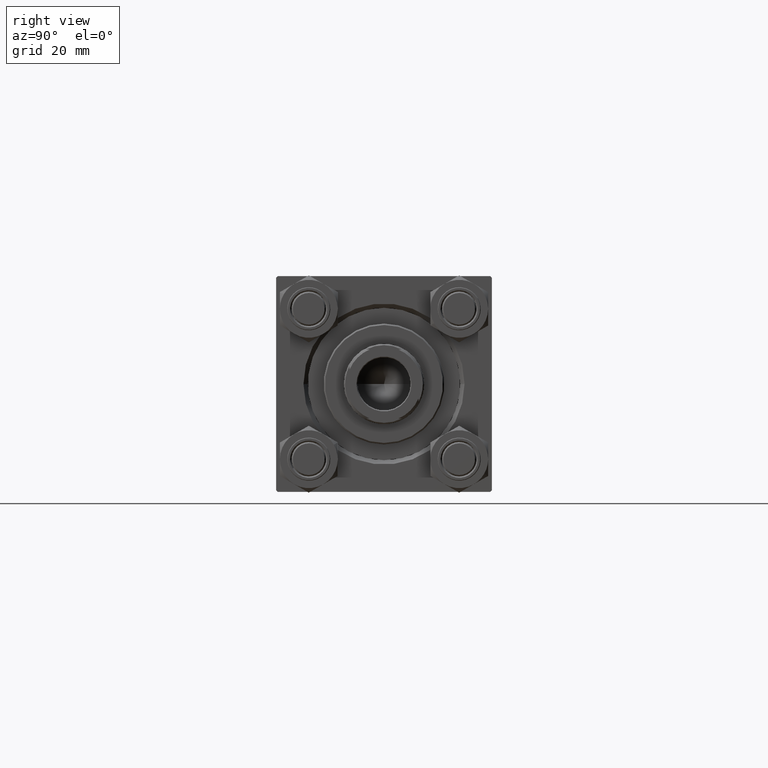
[diagram: clean part render]
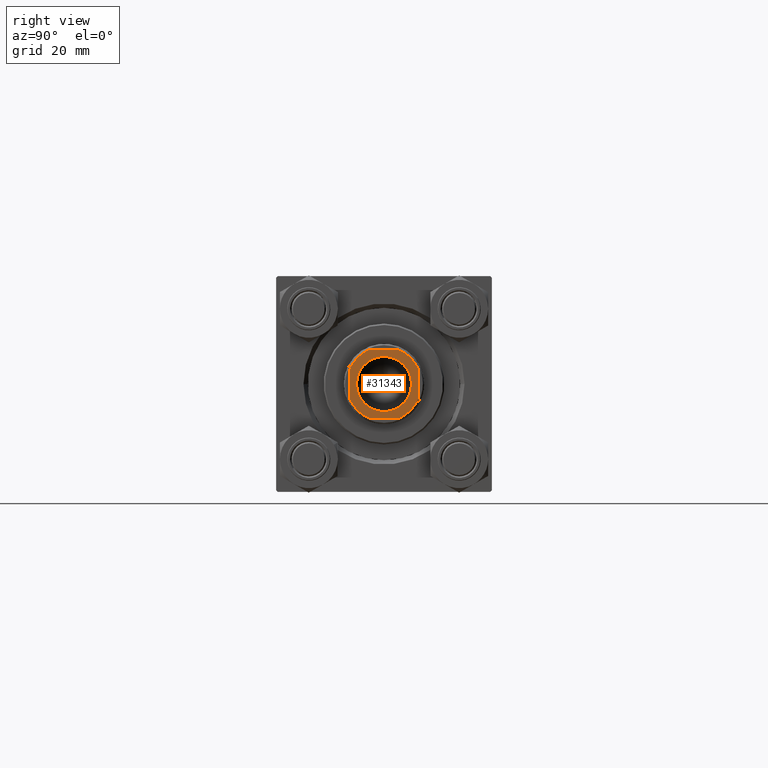
[diagram: same view with one face highlighted and labeled with its STEP entity id]
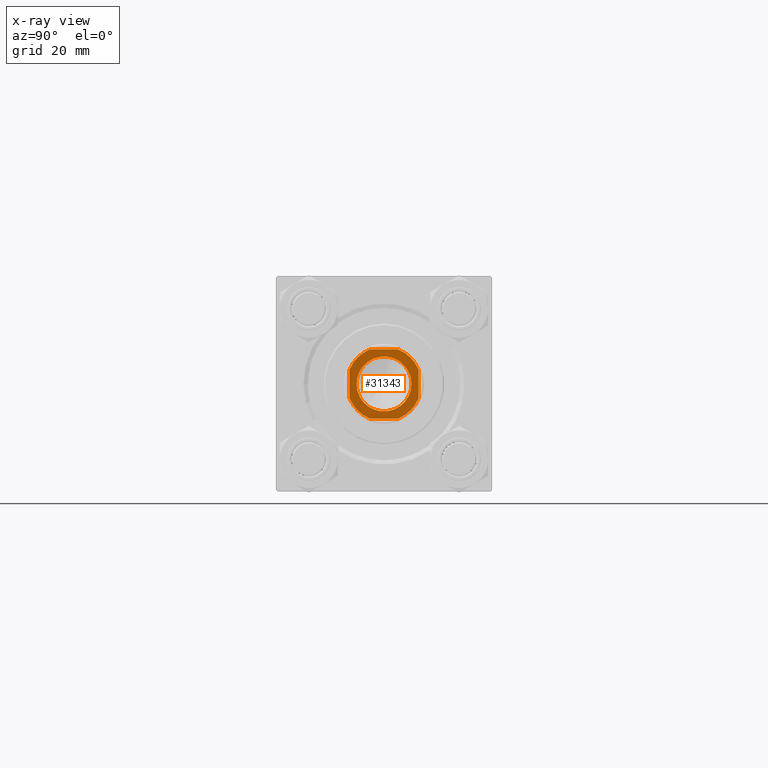
[diagram: x-ray of the same camera — body ghosted, the highlighted face saturated]
A machine part, right view. The second image highlights one B-rep face of the part: STEP entity #31343.
The next image is the same camera in x-ray: the body ghosted, the highlighted face saturated — about 0% of this face is hidden behind the body in this view.
In plain terms, the highlighted planar face has unit normal (1, 0, 0).
Its self-contained STEP definition (entity closure, byte-faithful):
#3037 = DIRECTION ( 'NONE',  ( 0.000000000000000000, -0.000000000000000000, -1.000000000000000000 ) ) ;
#3933 = VERTEX_POINT ( 'NONE', #5355 ) ;
#4201 = ORIENTED_EDGE ( 'NONE', *, *, #26385, .T. ) ;
#4253 = CIRCLE ( 'NONE', #19493, 9.550000000000002487 ) ;
#4907 = CARTESIAN_POINT ( 'NONE',  ( 4.999999999999984013, 11.99999999999999645, 142.0000000000000284 ) ) ;
#5355 = CARTESIAN_POINT ( 'NONE',  ( -4.999999999999944933, 11.99999999999999645, 142.0000000000000284 ) ) ;
#5690 = VERTEX_POINT ( 'NONE', #4907 ) ;
#5832 = CARTESIAN_POINT ( 'NONE',  ( -12.00000000000000000, 11.99999999999999645, 142.0000000000000284 ) ) ;
#5950 = EDGE_CURVE ( 'NONE', #19639, #18146, #28410, .T. ) ;
#6329 = CARTESIAN_POINT ( 'NONE',  ( 0.000000000000000000, 0.000000000000000000, 142.0000000000000284 ) ) ;
#7753 = EDGE_CURVE ( 'NONE', #23445, #19639, #10787, .T. ) ;
#8281 = CARTESIAN_POINT ( 'NONE',  ( -12.00000000000000000, -4.999999999999980460, 142.0000000000000284 ) ) ;
#9046 = CARTESIAN_POINT ( 'NONE',  ( 0.000000000000000000, 0.000000000000000000, 142.0000000000000284 ) ) ;
#10787 = CIRCLE ( 'NONE', #21175, 12.99999999999999289 ) ;
#10842 = CARTESIAN_POINT ( 'NONE',  ( -12.00000000000000000, 11.99999999999999645, 142.0000000000000284 ) ) ;
#11158 = EDGE_CURVE ( 'NONE', #44040, #20514, #11687, .T. ) ;
#11687 = CIRCLE ( 'NONE', #24509, 12.99999999999999289 ) ;
#11834 = EDGE_CURVE ( 'NONE', #3933, #16805, #15707, .T. ) ;
#11885 = PLANE ( 'NONE',  #18052 ) ;
#12511 = ORIENTED_EDGE ( 'NONE', *, *, #5950, .T. ) ;
#13622 = DIRECTION ( 'NONE',  ( 7.228014483236695816E-17, -1.000000000000000000, 0.000000000000000000 ) ) ;
#13643 = ORIENTED_EDGE ( 'NONE', *, *, #11834, .T. ) ;
#14025 = CARTESIAN_POINT ( 'NONE',  ( -4.999999999999971578, -12.00000000000000355, 142.0000000000000284 ) ) ;
#14911 = AXIS2_PLACEMENT_3D ( 'NONE', #39108, #19516, #42873 ) ;
#15039 = AXIS2_PLACEMENT_3D ( 'NONE', #38065, #37574, #25998 ) ;
#15608 = LINE ( 'NONE', #10842, #42795 ) ;
#15707 = CIRCLE ( 'NONE', #14911, 12.99999999999997513 ) ;
#16157 = DIRECTION ( 'NONE',  ( -0.000000000000000000, 0.000000000000000000, 1.000000000000000000 ) ) ;
#16805 = VERTEX_POINT ( 'NONE', #34705 ) ;
#18052 = AXIS2_PLACEMENT_3D ( 'NONE', #27698, #16157, #23680 ) ;
#18079 = CARTESIAN_POINT ( 'NONE',  ( 12.00000000000000178, -4.999999999999976907, 142.0000000000000284 ) ) ;
#18146 = VERTEX_POINT ( 'NONE', #40910 ) ;
#19493 = AXIS2_PLACEMENT_3D ( 'NONE', #6329, #3037, #37198 ) ;
#19516 = DIRECTION ( 'NONE',  ( -0.000000000000000000, 0.000000000000000000, 1.000000000000000000 ) ) ;
#19610 = VECTOR ( 'NONE', #13622, 1000.000000000000000 ) ;
#19639 = VERTEX_POINT ( 'NONE', #18079 ) ;
#19691 = CARTESIAN_POINT ( 'NONE',  ( 9.550000000000002487, 0.000000000000000000, 142.0000000000000284 ) ) ;
#19898 = ORIENTED_EDGE ( 'NONE', *, *, #44259, .T. ) ;
#20514 = VERTEX_POINT ( 'NONE', #14025 ) ;
#20770 = ORIENTED_EDGE ( 'NONE', *, *, #11158, .T. ) ;
#21031 = CARTESIAN_POINT ( 'NONE',  ( -11.99999999999999822, -12.00000000000000355, 142.0000000000000284 ) ) ;
#21175 = AXIS2_PLACEMENT_3D ( 'NONE', #9046, #36659, #25094 ) ;
#21437 = VERTEX_POINT ( 'NONE', #19691 ) ;
#21529 = CIRCLE ( 'NONE', #22351, 12.99999999999999112 ) ;
#22029 = EDGE_CURVE ( 'NONE', #29868, #21437, #4253, .T. ) ;
#22351 = AXIS2_PLACEMENT_3D ( 'NONE', #41874, #34332, #22549 ) ;
#22472 = DIRECTION ( 'NONE',  ( 1.000000000000000000, 0.000000000000000000, 0.000000000000000000 ) ) ;
#22549 = DIRECTION ( 'NONE',  ( 1.000000000000000000, 0.000000000000000000, 0.000000000000000000 ) ) ;
#22932 = FACE_OUTER_BOUND ( 'NONE', #47688, .T. ) ;
#23394 = ORIENTED_EDGE ( 'NONE', *, *, #7753, .T. ) ;
#23445 = VERTEX_POINT ( 'NONE', #40683 ) ;
#23680 = DIRECTION ( 'NONE',  ( 1.000000000000000000, 0.000000000000000000, 0.000000000000000000 ) ) ;
#24509 = AXIS2_PLACEMENT_3D ( 'NONE', #37037, #41559, #22472 ) ;
#25094 = DIRECTION ( 'NONE',  ( 1.000000000000000000, 0.000000000000000000, 0.000000000000000000 ) ) ;
#25294 = DIRECTION ( 'NONE',  ( 1.000000000000000000, 0.000000000000000000, 0.000000000000000000 ) ) ;
#25888 = LINE ( 'NONE', #5832, #19610 ) ;
#25998 = DIRECTION ( 'NONE',  ( 1.000000000000000000, 0.000000000000000000, 0.000000000000000000 ) ) ;
#26385 = EDGE_CURVE ( 'NONE', #16805, #44040, #25888, .T. ) ;
#27698 = CARTESIAN_POINT ( 'NONE',  ( 0.000000000000000000, 0.000000000000000000, 142.0000000000000284 ) ) ;
#28170 = DIRECTION ( 'NONE',  ( -2.891205793294678326E-16, 1.000000000000000000, -0.000000000000000000 ) ) ;
#28410 = LINE ( 'NONE', #43742, #30066 ) ;
#28674 = EDGE_CURVE ( 'NONE', #5690, #3933, #15608, .T. ) ;
#28783 = ORIENTED_EDGE ( 'NONE', *, *, #22029, .T. ) ;
#29868 = VERTEX_POINT ( 'NONE', #49685 ) ;
#30066 = VECTOR ( 'NONE', #28170, 1000.000000000000000 ) ;
#31343 = ADVANCED_FACE ( 'NONE', ( #42768, #22932 ), #11885, .T. ) ;
#32672 = CIRCLE ( 'NONE', #15039, 9.550000000000002487 ) ;
#32840 = VECTOR ( 'NONE', #25294, 1000.000000000000000 ) ;
#34332 = DIRECTION ( 'NONE',  ( -0.000000000000000000, 0.000000000000000000, 1.000000000000000000 ) ) ;
#34427 = ORIENTED_EDGE ( 'NONE', *, *, #37271, .T. ) ;
#34684 = DIRECTION ( 'NONE',  ( -1.000000000000000000, -0.000000000000000000, -0.000000000000000000 ) ) ;
#34705 = CARTESIAN_POINT ( 'NONE',  ( -12.00000000000000000, 4.999999999999936051, 142.0000000000000284 ) ) ;
#36659 = DIRECTION ( 'NONE',  ( -0.000000000000000000, 0.000000000000000000, 1.000000000000000000 ) ) ;
#37037 = CARTESIAN_POINT ( 'NONE',  ( 0.000000000000000000, 0.000000000000000000, 142.0000000000000284 ) ) ;
#37198 = DIRECTION ( 'NONE',  ( 1.000000000000000000, 0.000000000000000000, 0.000000000000000000 ) ) ;
#37271 = EDGE_CURVE ( 'NONE', #21437, #29868, #32672, .T. ) ;
#37574 = DIRECTION ( 'NONE',  ( 0.000000000000000000, -0.000000000000000000, -1.000000000000000000 ) ) ;
#38065 = CARTESIAN_POINT ( 'NONE',  ( 0.000000000000000000, 0.000000000000000000, 142.0000000000000284 ) ) ;
#39045 = EDGE_LOOP ( 'NONE', ( #34427, #28783 ) ) ;
#39108 = CARTESIAN_POINT ( 'NONE',  ( 0.000000000000000000, 0.000000000000000000, 142.0000000000000284 ) ) ;
#40683 = CARTESIAN_POINT ( 'NONE',  ( 4.999999999999971578, -12.00000000000000355, 142.0000000000000284 ) ) ;
#40910 = CARTESIAN_POINT ( 'NONE',  ( 11.99999999999999822, 4.999999999999980460, 142.0000000000000284 ) ) ;
#41559 = DIRECTION ( 'NONE',  ( -0.000000000000000000, 0.000000000000000000, 1.000000000000000000 ) ) ;
#41874 = CARTESIAN_POINT ( 'NONE',  ( 0.000000000000000000, 0.000000000000000000, 142.0000000000000284 ) ) ;
#42768 = FACE_BOUND ( 'NONE', #39045, .T. ) ;
#42795 = VECTOR ( 'NONE', #34684, 1000.000000000000000 ) ;
#42873 = DIRECTION ( 'NONE',  ( 1.000000000000000000, 0.000000000000000000, 0.000000000000000000 ) ) ;
#43742 = CARTESIAN_POINT ( 'NONE',  ( 11.99999999999999645, 11.99999999999999645, 142.0000000000000284 ) ) ;
#43912 = ORIENTED_EDGE ( 'NONE', *, *, #47057, .T. ) ;
#44040 = VERTEX_POINT ( 'NONE', #8281 ) ;
#44140 = LINE ( 'NONE', #21031, #32840 ) ;
#44259 = EDGE_CURVE ( 'NONE', #18146, #5690, #21529, .T. ) ;
#46656 = ORIENTED_EDGE ( 'NONE', *, *, #28674, .T. ) ;
#47057 = EDGE_CURVE ( 'NONE', #20514, #23445, #44140, .T. ) ;
#47688 = EDGE_LOOP ( 'NONE', ( #12511, #19898, #46656, #13643, #4201, #20770, #43912, #23394 ) ) ;
#49685 = CARTESIAN_POINT ( 'NONE',  ( -9.550000000000002487, 1.169537693185722558E-15, 142.0000000000000284 ) ) ;